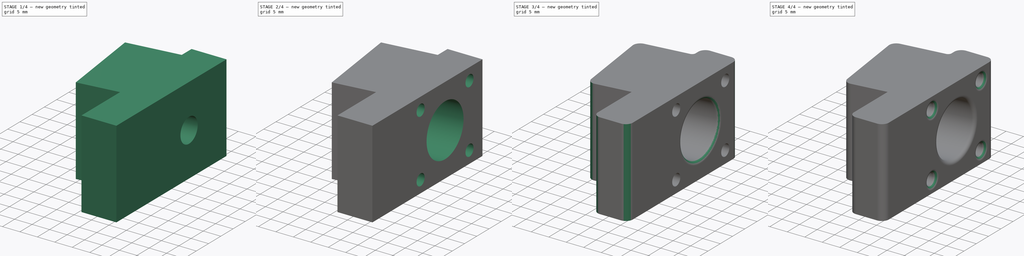
[diagram: build sequence overview — one tinted view per stage of 4, left to right]
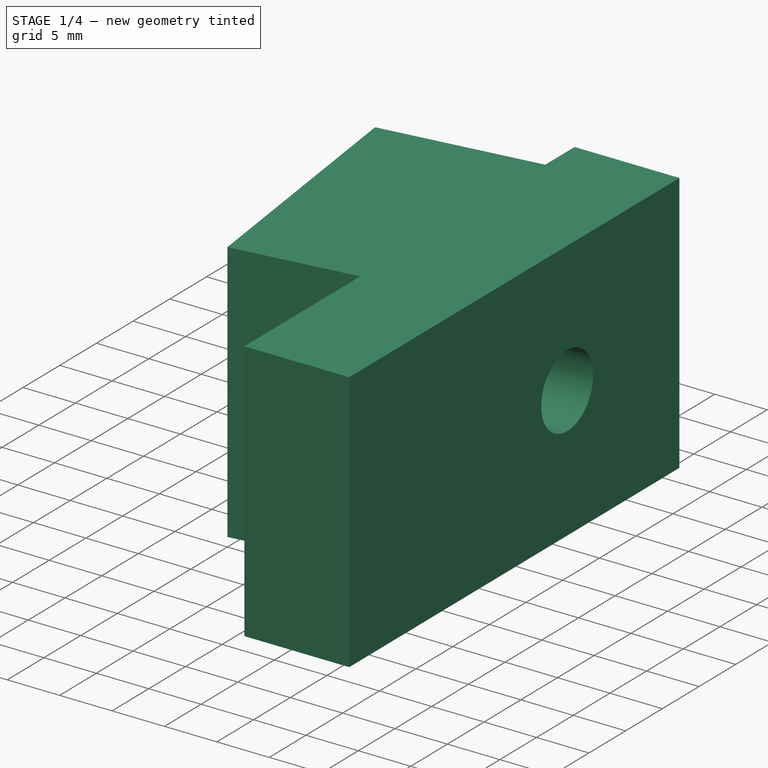
[diagram: stage 1 of 4 — iso view after this stage's code; geometry added in this stage tinted green]
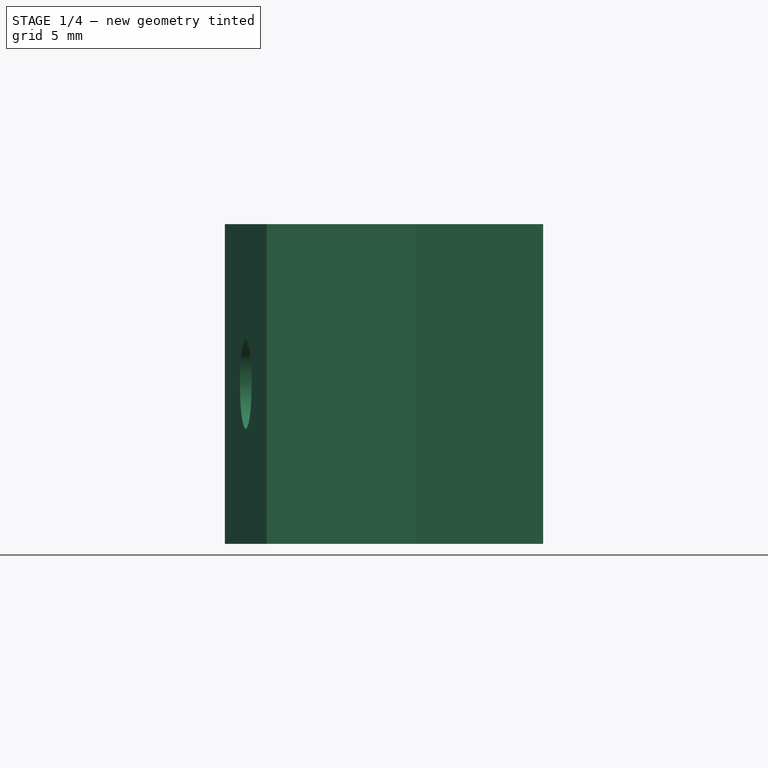
[diagram: stage 1 of 4 — front view after this stage's code; geometry added in this stage tinted green]
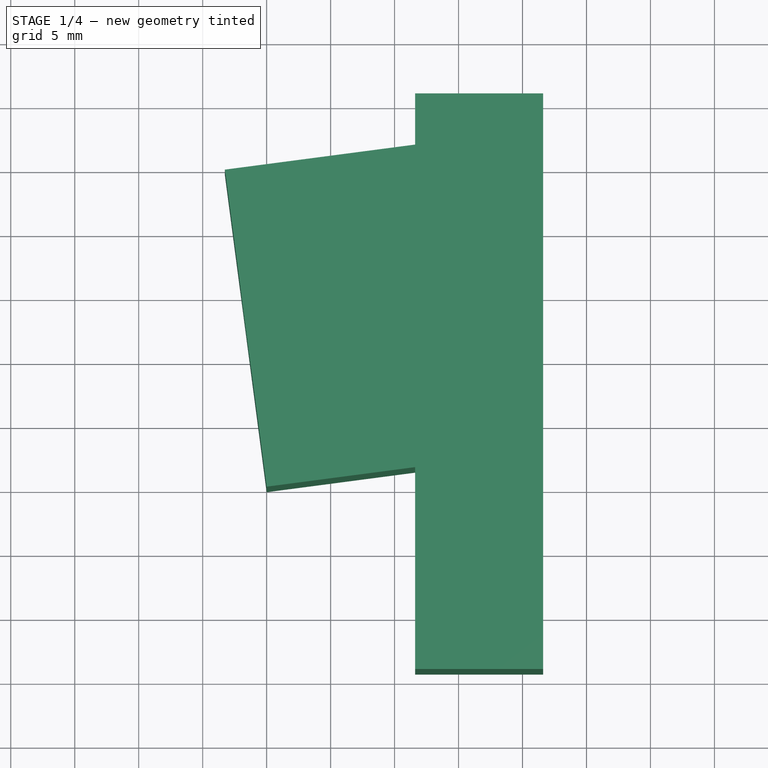
[diagram: stage 1 of 4 — top view after this stage's code; geometry added in this stage tinted green]
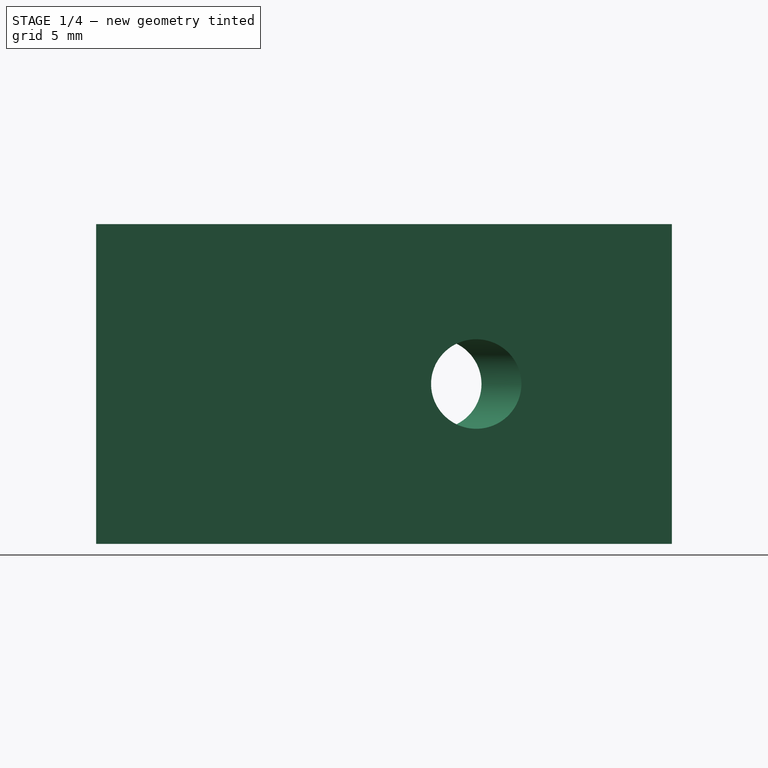
[diagram: stage 1 of 4 — right view after this stage's code; geometry added in this stage tinted green]
FCSTD DOCUMENT  (FreeCAD 0.20R29177 +233 (Git))
Label: back_seat_bolt_adapter_plate
License: All rights reserved
LicenseURL: http://en.wikipedia.org/wiki/All_rights_reserved
objects: PartDesign::Fillet×5, Sketcher::SketchObject×4, PartDesign::Pocket×3, PartDesign::Pad×1, PartDesign::Plane×1, PartDesign::Body×1
note: 24 computed .brp shape members not serialized (recipe doc carries the construction recipe); baked Part::Feature solids carry a one-line shape summary decoded from their .brp

FEATURE [Sketcher::SketchObject] Sketch
  FullyConstrained = true
  MapMode = 5
  Support = -> [XY_Plane]
  sketch-geometry (10):
    g0: LineSegment StartX=-3.26315 StartY=24.7861 StartZ=0 EndX=4e-16 EndY=0 EndZ=0
    g1: LineSegment StartX=0 StartY=25.2157 StartZ=0 EndX=4e-16 EndY=0 EndZ=0
    g2: LineSegment StartX=11.6085 StartY=30.744 StartZ=0 EndX=21.6085 EndY=30.744 EndZ=0
    g3: LineSegment StartX=21.6085 StartY=30.744 StartZ=0 EndX=21.6085 EndY=-14.256 EndZ=0
    g4: LineSegment StartX=21.6085 StartY=-14.256 StartZ=0 EndX=11.6085 EndY=-14.256 EndZ=0
    g5: LineSegment StartX=11.6085 StartY=26.744 StartZ=0 EndX=11.6085 EndY=30.744 EndZ=0
    g6: LineSegment StartX=11.6085 StartY=-14.256 StartZ=0 EndX=11.6085 EndY=1.52829 EndZ=0
    g7: LineSegment StartX=-3.26315 StartY=24.7861 StartZ=0 EndX=11.6085 EndY=26.744 EndZ=0
    g8: LineSegment StartX=4e-16 StartY=0 StartZ=0 EndX=11.6085 EndY=1.52829 EndZ=0
    g9: GeomPoint X=-1.63158 Y=12.3931 Z=0
  constraints (26):
    c: Distance(g0) = 25
    c: Coincident(g3,g2)
    c: Vertical(g3)
    c: Coincident(g4,g3)
    c: Coincident(g5,g2)
    c: Coincident(g6,g4)
    c: Tangent(g5,g6)
    c: Coincident(g7,g0)
    c: Coincident(g7,g5)
    c: Coincident(g8,g0)
    c: Coincident(g8,g6)
    c: Parallel(g6,g1)
    c: Perpendicular(g0,g8)
    c: Parallel(g7,g8)
    c: Horizontal(g4)
    c: Horizontal(g2)
    c: Coincident(g0,g1)
    c: Coincident(g0,g-1)
    c: Angle(g1,g0) = 0.1309
    c: PointOnObject(g1,g-2)
    c: Distance(g0,g5) = 15
    c: Distance(g2) = 10
    c: Distance(g3) = 45
    c: Symmetric(g0,g0,g9)
    c: DistanceY(g5,g2) = 4
    c: PointOnObject(g1,g7)
FEATURE [PartDesign::Pad] Pad
  Direction = (0,0,1)
  Length = 25
  Length2 = 10
  Profile = -> Sketch
  ReferenceAxis = -> Sketch [N_Axis]
  Type = 0
FEATURE [Sketcher::SketchObject] Sketch001
  ExternalGeometry = -> [Pad]
  FullyConstrained = true
  MapMode = 5
  Placement = pos=(4e-16,1e-16,0) rot=(0.627681,-0.550462,-0.550462;2.02054rad)
  Support = -> [Pad]
  sketch-geometry (2):
    g0: Circle CenterX=-12.5 CenterY=12.5 CenterZ=0 NormalX=0 NormalY=0 NormalZ=1 AngleXU=0 Radius=3.5
    g1: LineSegment StartX=-25 StartY=12.5 StartZ=0 EndX=0 EndY=12.5 EndZ=0
  constraints (4):
    c: Diameter(g0) = 7
    c: Symmetric(g-4,g-4,g1)
    c: Symmetric(g-3,g-3,g1)
    c: Symmetric(g1,g1,g0)
FEATURE [PartDesign::Pocket] Pocket
  BaseFeature = -> Pad
  Direction = (0.991445,0.130526,0)
  Length = 5
  Length2 = 5
  Profile = -> Sketch001
  ReferenceAxis = -> Sketch001 [N_Axis]
  Type = 2
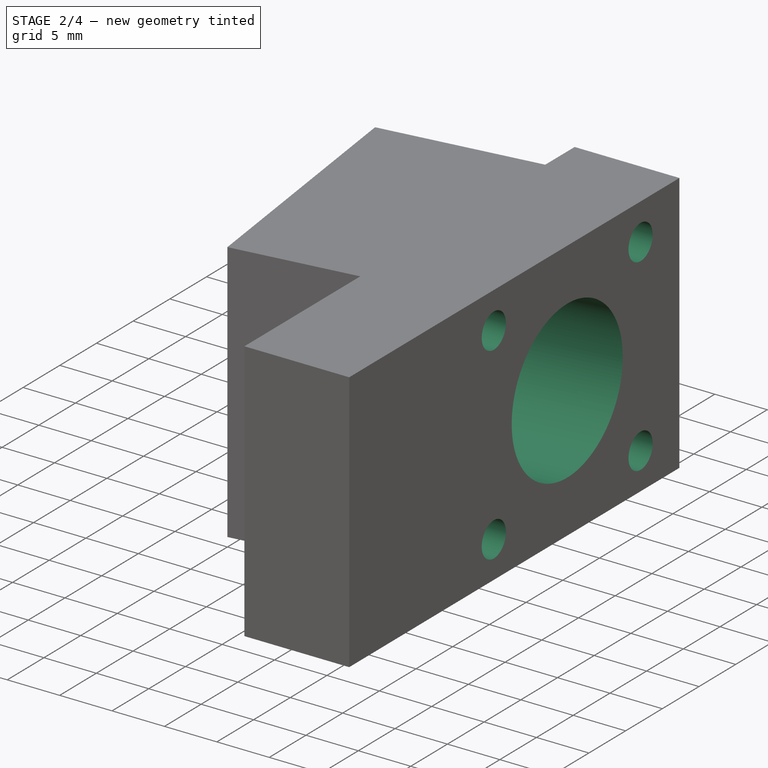
[diagram: stage 2 of 4 — iso view after this stage's code; geometry added in this stage tinted green]
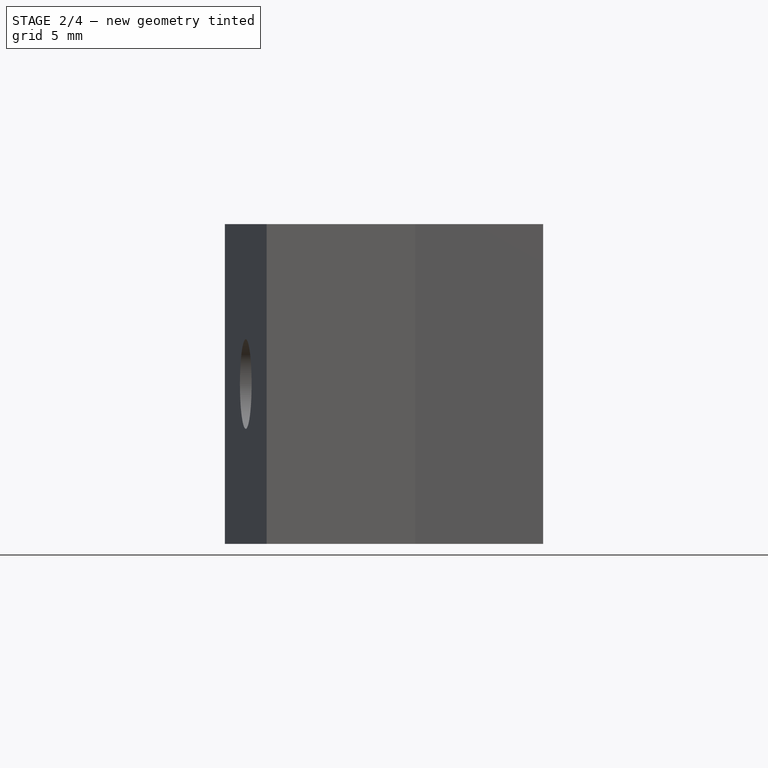
[diagram: stage 2 of 4 — front view after this stage's code; geometry added in this stage tinted green]
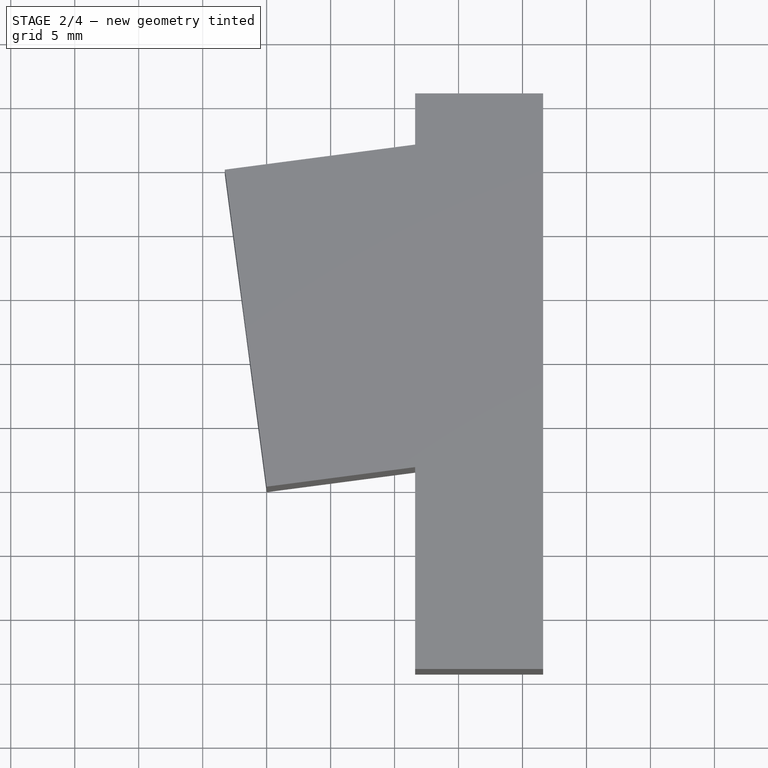
[diagram: stage 2 of 4 — top view after this stage's code; geometry added in this stage tinted green]
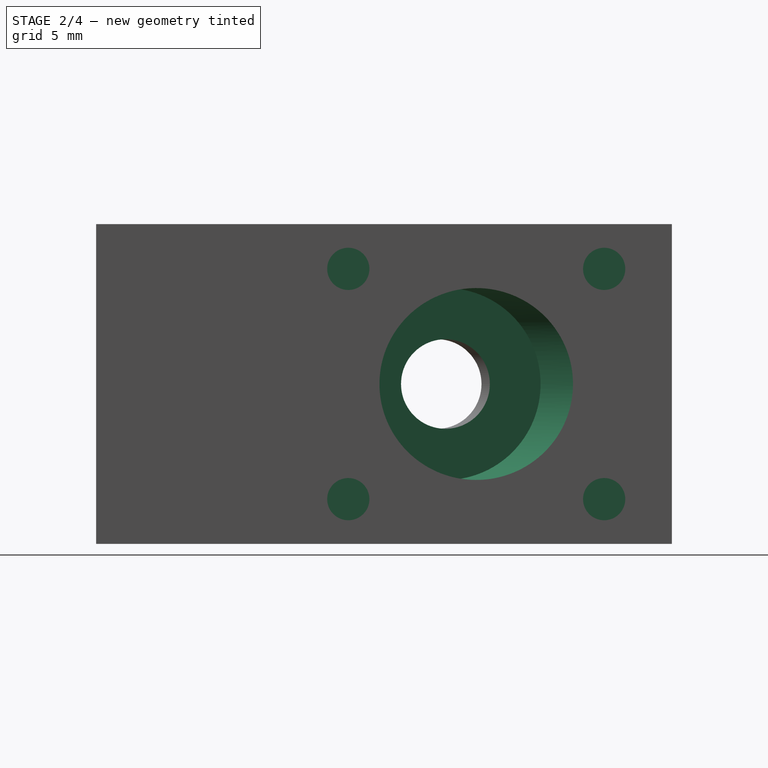
[diagram: stage 2 of 4 — right view after this stage's code; geometry added in this stage tinted green]
FEATURE [PartDesign::Plane] DatumPlane
  AttachmentOffset = pos=(0,0,-5) rot=(0,0,1;0rad)
  Length = 72.9104
  MapMode = 5
  Placement = pos=(4.95722,0.652631,0) rot=(0.627681,-0.550462,-0.550462;2.02054rad)
  ResizeMode = 0
  Support = -> [Pocket]
  Width = 61.117
FEATURE [Sketcher::SketchObject] Sketch002
  ExternalGeometry = -> [Pocket]
  FullyConstrained = true
  MapMode = 5
  Placement = pos=(4.95722,0.652631,0) rot=(0.627681,-0.550462,-0.550462;2.02054rad)
  Support = -> [DatumPlane]
  sketch-geometry (1):
    g0: Circle CenterX=-12.5 CenterY=12.5 CenterZ=0 NormalX=0 NormalY=0 NormalZ=1 AngleXU=0 Radius=7.5
  constraints (2):
    c: Coincident(g0,g-5)
    c: Diameter(g0) = 15
FEATURE [PartDesign::Pocket] Pocket001
  BaseFeature = -> Pocket
  Direction = (0.991445,0.130526,0)
  Length = 0
  Length2 = 5
  Profile = -> Sketch002
  ReferenceAxis = -> Sketch002 [N_Axis]
  Type = 3
  UpToFace = -> Pocket [Face11]
FEATURE [Sketcher::SketchObject] Sketch003
  ExternalGeometry = -> [Pocket001]
  FullyConstrained = true
  MapMode = 5
  Placement = pos=(21.6085,0,0) rot=(0.57735,0.57735,0.57735;2.0944rad)
  Support = -> [Pocket001]
  sketch-geometry (10):
    g0: Circle CenterX=5.45268 CenterY=3.5 CenterZ=0 NormalX=0 NormalY=0 NormalZ=1 AngleXU=0 Radius=1.65
    g1: LineSegment StartX=5.45268 StartY=21.5 StartZ=0 EndX=25.4527 EndY=21.5 EndZ=0
    g2: LineSegment StartX=25.4527 StartY=21.5 StartZ=0 EndX=25.4527 EndY=3.5 EndZ=0
    g3: LineSegment StartX=25.4527 StartY=3.5 StartZ=0 EndX=5.45268 EndY=3.5 EndZ=0
    g4: LineSegment StartX=5.45268 StartY=3.5 StartZ=0 EndX=5.45268 EndY=21.5 EndZ=0
    g5: LineSegment StartX=25.4527 StartY=12.5 StartZ=0 EndX=30.744 EndY=12.5 EndZ=0
    g6: LineSegment StartX=5.45268 StartY=12.5 StartZ=0 EndX=25.4527 EndY=12.5 EndZ=0
    g7: Circle CenterX=5.45268 CenterY=21.5 CenterZ=0 NormalX=0 NormalY=0 NormalZ=1 AngleXU=0 Radius=1.65
    g8: Circle CenterX=25.4527 CenterY=21.5 CenterZ=0 NormalX=0 NormalY=0 NormalZ=1 AngleXU=0 Radius=1.65
    g9: Circle CenterX=25.4527 CenterY=3.5 CenterZ=0 NormalX=0 NormalY=0 NormalZ=1 AngleXU=0 Radius=1.65
  constraints (25):
    c: Diameter(g0) = 3.3
    c: Coincident(g1,g2)
    c: Coincident(g2,g3)
    c: Coincident(g3,g4)
    c: Coincident(g4,g1)
    c: Horizontal(g1)
    c: Horizontal(g3)
    c: Vertical(g2)
    c: Vertical(g4)
    c: Coincident(g0,g3)
    c: DistanceX(g3,g3) = 20
    c: DistanceY(g4,g4) = 18
    c: Symmetric(g-6,g-6,g5)
    c: Symmetric(g1,g2,g5)
    c: Horizontal(g5)
    c: Symmetric(g6,g6,g-4)
    c: PointOnObject(g6,g2)
    c: PointOnObject(g6,g4)
    c: Horizontal(g6)
    c: Coincident(g7,g1)
    c: Coincident(g8,g1)
    c: Coincident(g9,g2)
    c: Equal(g9,g8)
    c: Equal(g8,g7)
    c: Equal(g7,g0)
FEATURE [PartDesign::Pocket] Pocket002
  BaseFeature = -> Pocket001
  Direction = (-1,0,0)
  Length = 8
  Length2 = 5
  Profile = -> Sketch003
  ReferenceAxis = -> Sketch003 [N_Axis]
  Type = 0
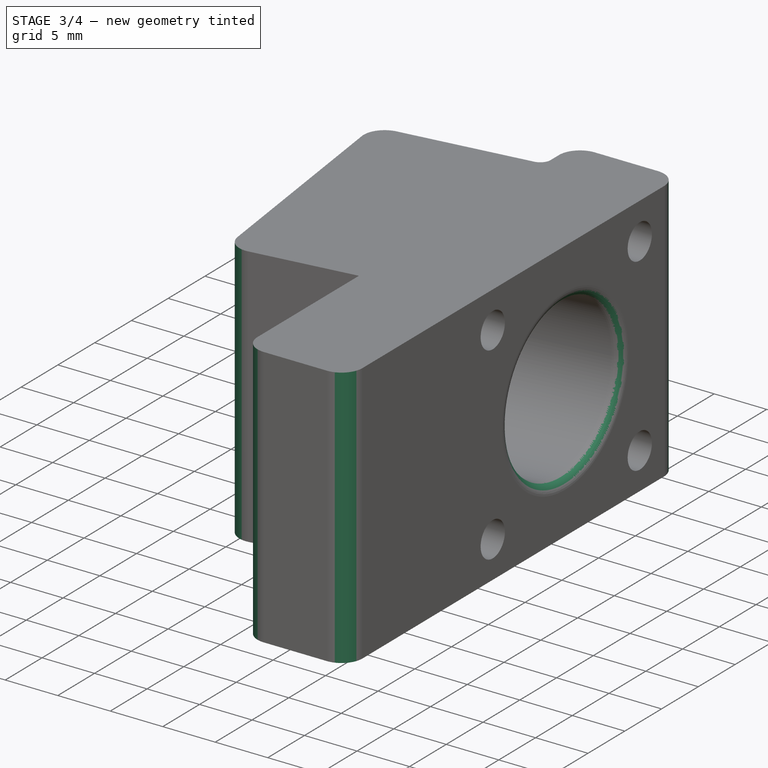
[diagram: stage 3 of 4 — iso view after this stage's code; geometry added in this stage tinted green]
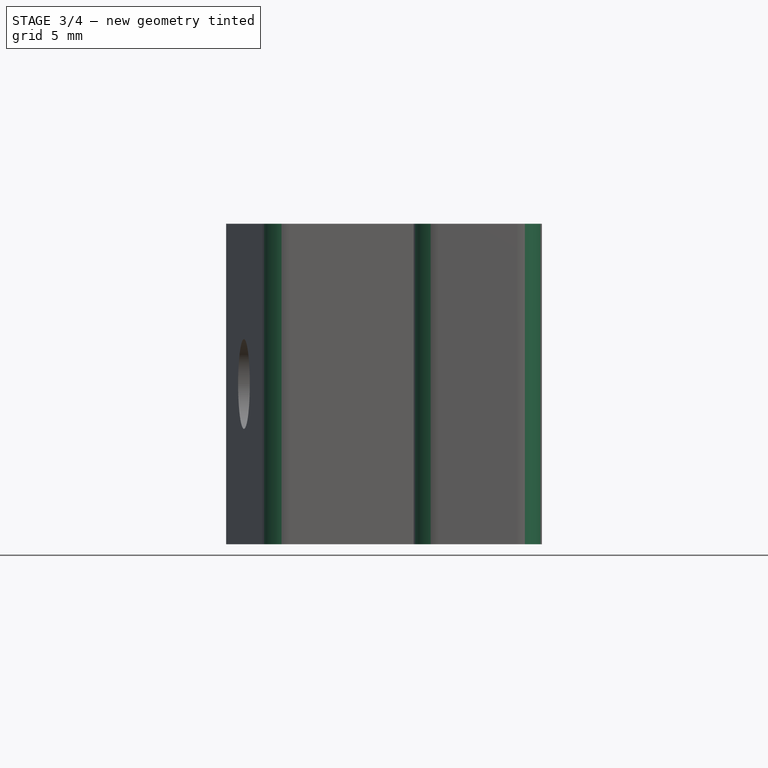
[diagram: stage 3 of 4 — front view after this stage's code; geometry added in this stage tinted green]
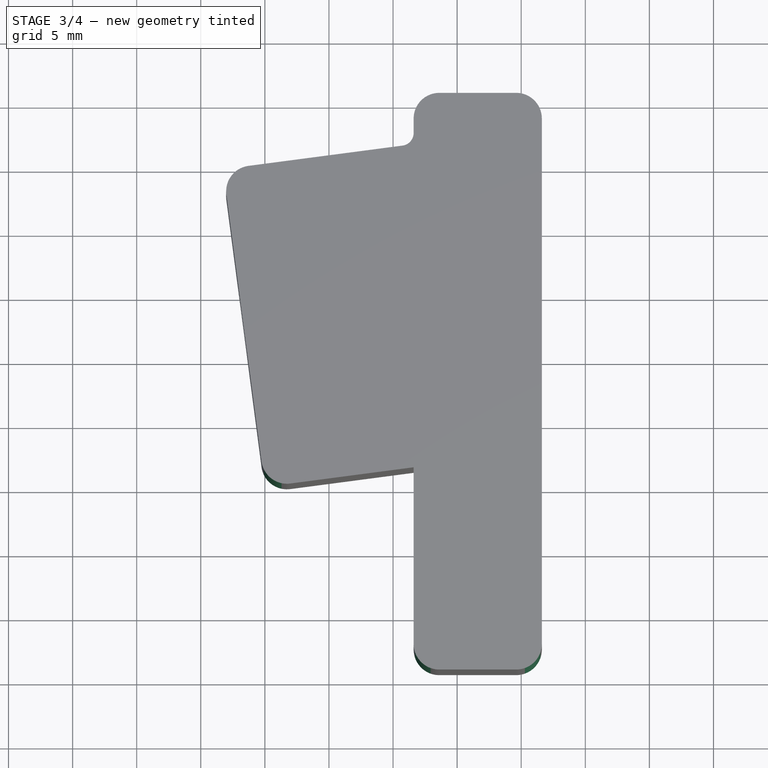
[diagram: stage 3 of 4 — top view after this stage's code; geometry added in this stage tinted green]
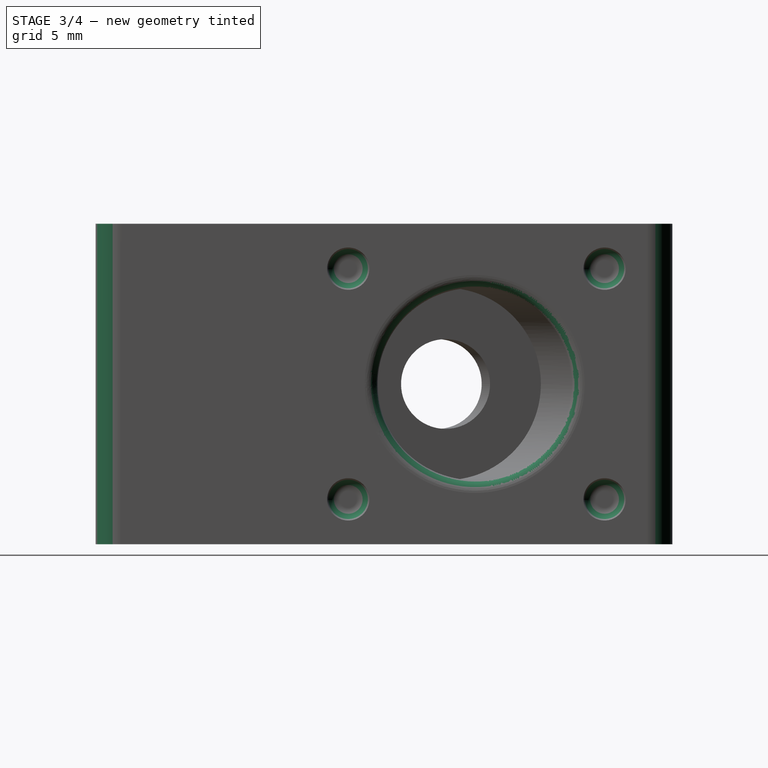
[diagram: stage 3 of 4 — right view after this stage's code; geometry added in this stage tinted green]
FEATURE [PartDesign::Fillet] Fillet
  Base = -> Pocket002 [Edge1,Edge7,Edge26,Edge27,Edge25,Edge9]
  BaseFeature = -> Pocket002
  Radius = 2
  SupportTransform = false
  UseAllEdges = false
FEATURE [PartDesign::Fillet] Fillet001
  Base = -> Fillet [Edge3,Edge44]
  BaseFeature = -> Fillet
  Radius = 1
  SupportTransform = false
  UseAllEdges = false
FEATURE [PartDesign::Fillet] Fillet002
  Base = -> Fillet001 [Edge59,Edge63,Edge61,Edge57]
  BaseFeature = -> Fillet001
  Radius = 1
  SupportTransform = false
  UseAllEdges = false
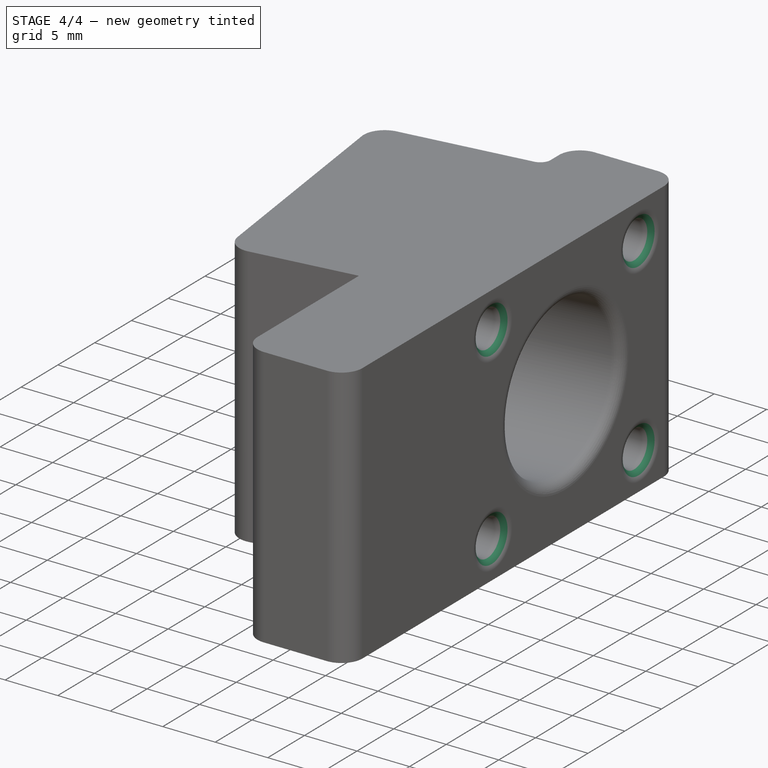
[diagram: stage 4 of 4 — iso view after this stage's code; geometry added in this stage tinted green]
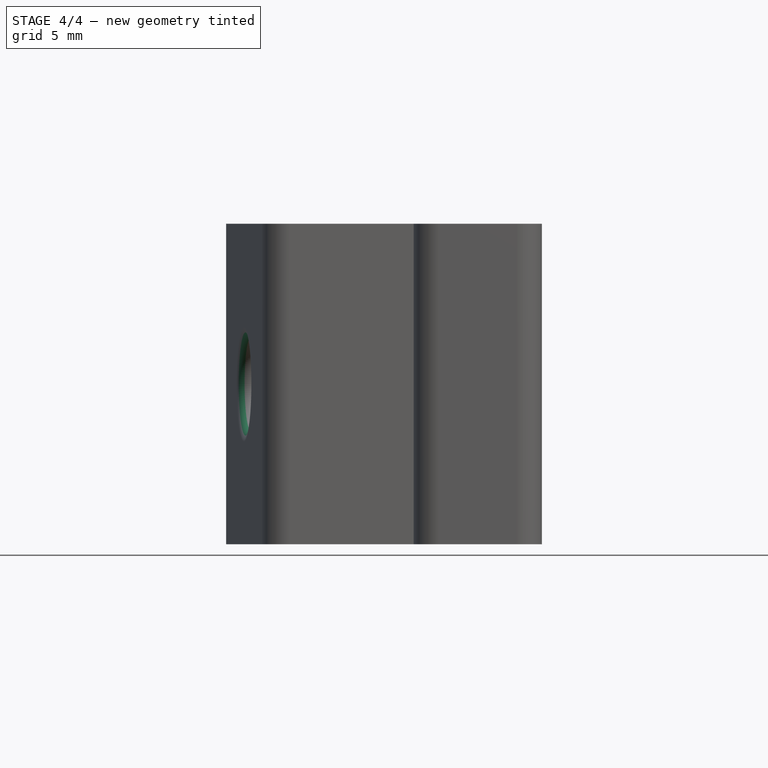
[diagram: stage 4 of 4 — front view after this stage's code; geometry added in this stage tinted green]
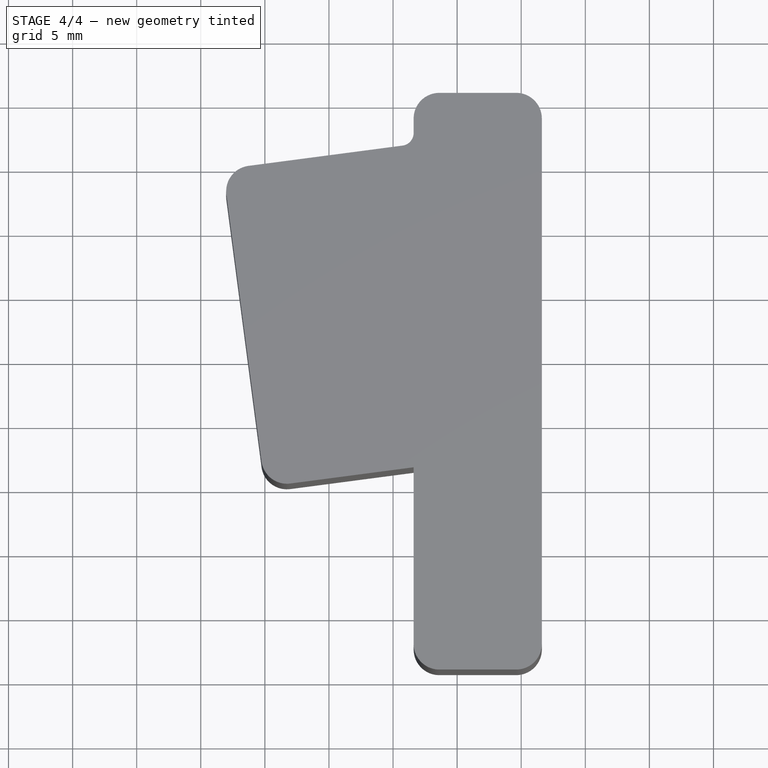
[diagram: stage 4 of 4 — top view after this stage's code; geometry added in this stage tinted green]
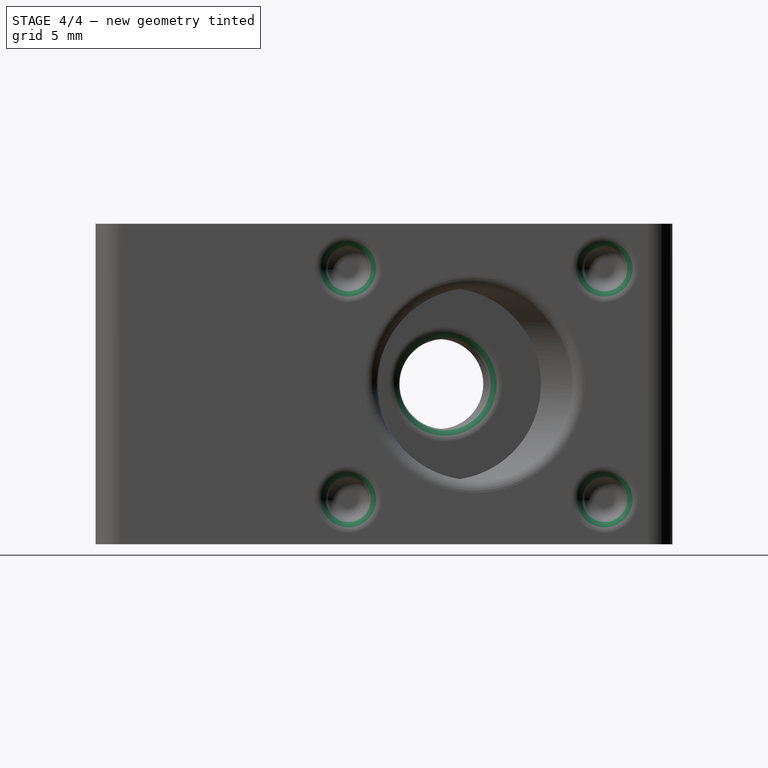
[diagram: stage 4 of 4 — right view after this stage's code; geometry added in this stage tinted green]
FEATURE [PartDesign::Fillet] Fillet003
  Base = -> Fillet002 [Edge72,Edge60]
  BaseFeature = -> Fillet002
  Radius = 1
  SupportTransform = false
  UseAllEdges = false
FEATURE [PartDesign::Fillet] Fillet004
  Base = -> Fillet003 [Edge50,Edge52,Edge53,Edge51]
  BaseFeature = -> Fillet003
  Radius = 1
  SupportTransform = false
  UseAllEdges = false
FEATURE [PartDesign::Body] Body
  Group = -> [Sketch,Pad,Sketch001,Pocket,DatumPlane,Sketch002,Pocket001,Sketch003,Pocket002,Fillet,Fillet001,Fillet002,Fillet003,Fillet004]
  Origin = -> Origin
  Tip = -> Fillet004
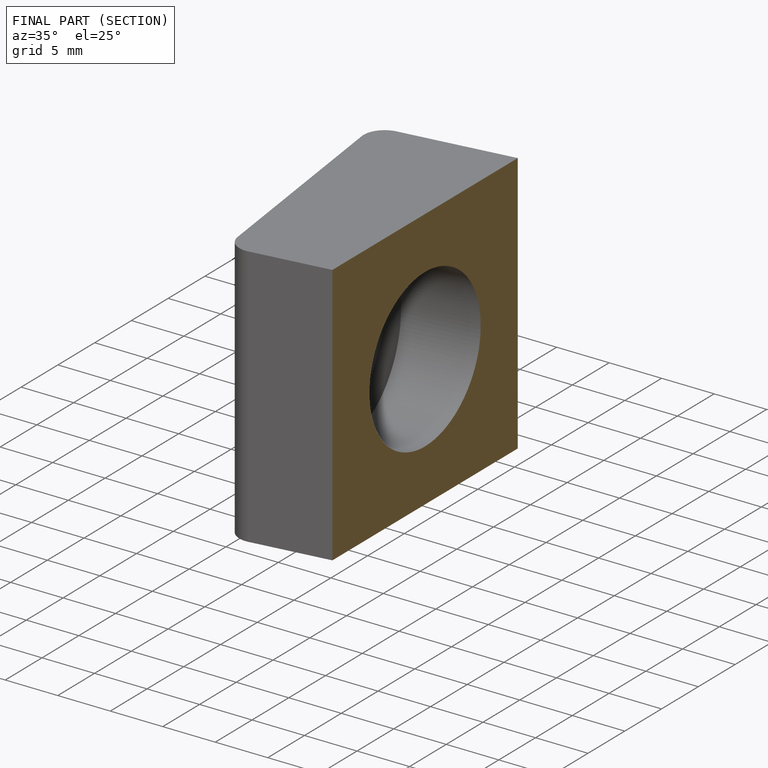
[diagram: finished part — half-section view (interior)]
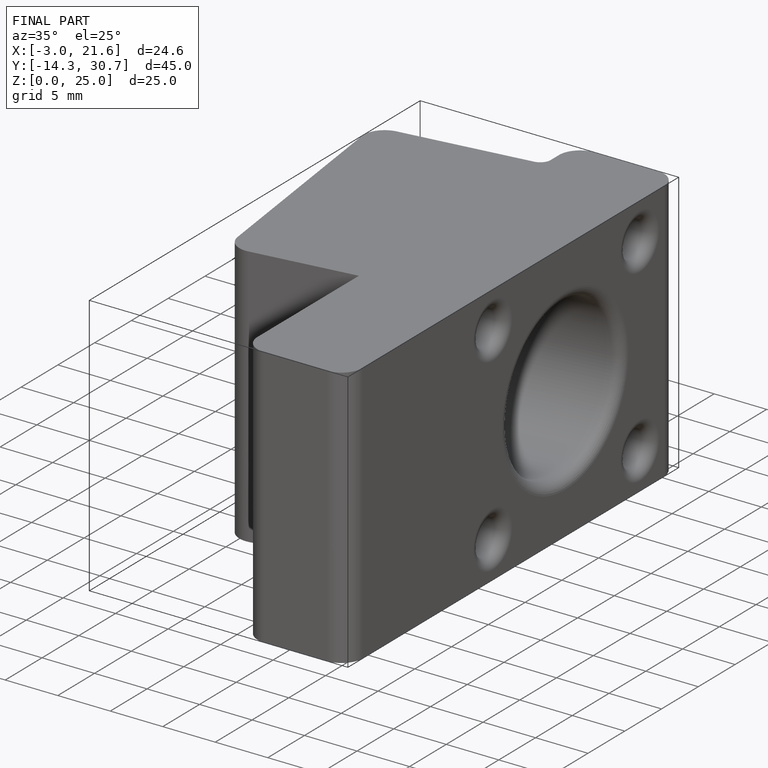
[diagram: finished part — iso view with bounding-box wireframe]
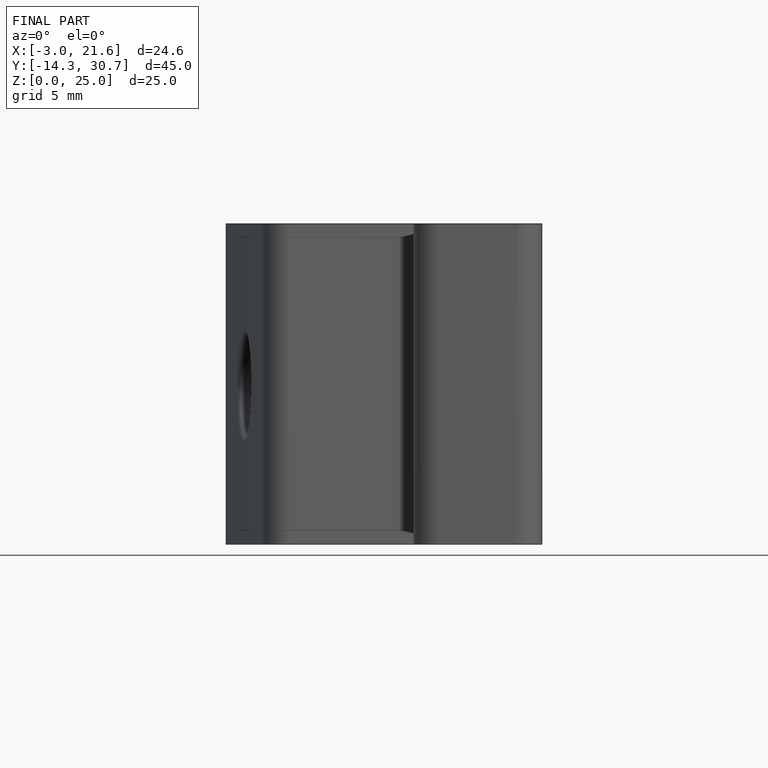
[diagram: finished part — front view with bounding-box wireframe]
